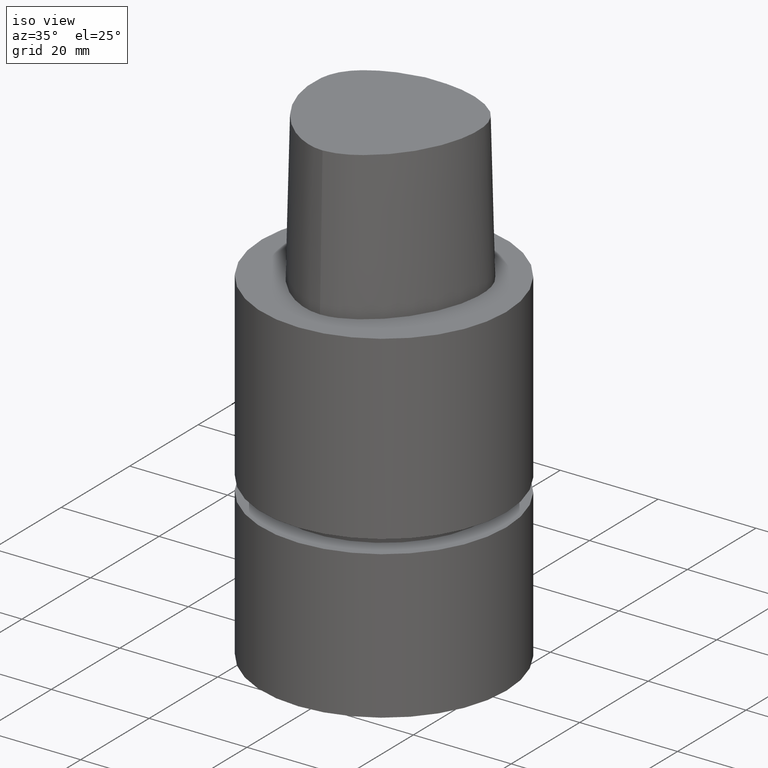
[diagram: clean part render]
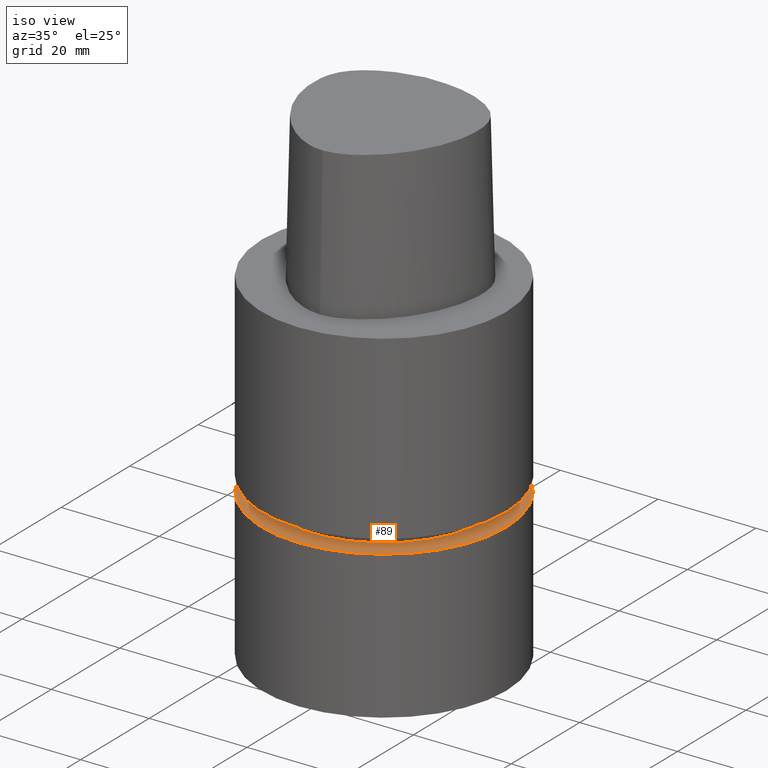
[diagram: same view with one face highlighted and labeled with its STEP entity id]
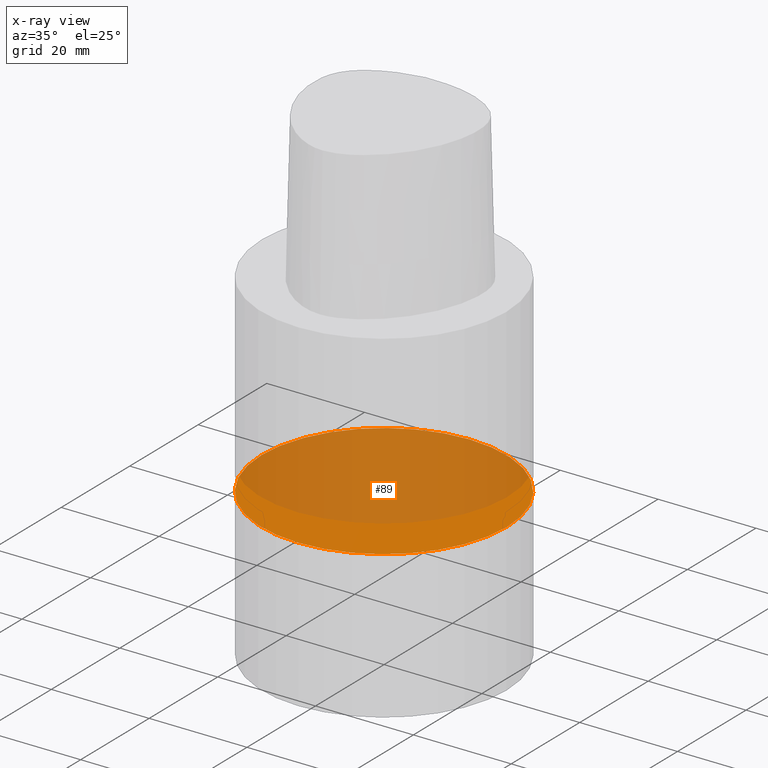
[diagram: x-ray of the same camera — body ghosted, the highlighted face saturated]
A machine part, iso view. The second image highlights one B-rep face of the part: STEP entity #89.
The next image is the same camera in x-ray: the body ghosted, the highlighted face saturated — about 70% of this face is hidden behind the body in this view.
In plain terms, the highlighted planar face has unit normal (-0, -0, 1).
Its self-contained STEP definition (entity closure, byte-faithful):
#89=ADVANCED_FACE('Unnamed[1]',(#191),#192,.T.);
#98=EDGE_CURVE('Unnamed[1]',#203,#203,#204,.T.);
#191=FACE_OUTER_BOUND('',#412,.T.);
#192=PLANE('',#413);
#203=VERTEX_POINT('',#427);
#204=CIRCLE('',#428,25.0);
#412=EDGE_LOOP('',(#955));
#413=AXIS2_PLACEMENT_3D('',#956,#957,#958);
#427=CARTESIAN_POINT('',(2.43704713030323E-015,25.0,-39.8));
#428=AXIS2_PLACEMENT_3D('',#966,#967,#968);
#955=ORIENTED_EDGE('',*,*,#98,.F.);
#956=CARTESIAN_POINT('',(2.43704713030323E-015,12.5,-39.8));
#957=DIRECTION('',(-6.12323399573677E-017,-1.22464679914735E-016,1.0));
#958=DIRECTION('',(1.23259516440783E-032,-1.0,-1.22464679914735E-016));
#966=CARTESIAN_POINT('',(2.43704713030323E-015,4.87409426060646E-015,-39.8));
#967=DIRECTION('',(6.12323399573677E-017,1.22464679914735E-016,-1.0));
#968=DIRECTION('',(-1.23259516440783E-032,1.0,1.22464679914735E-016));